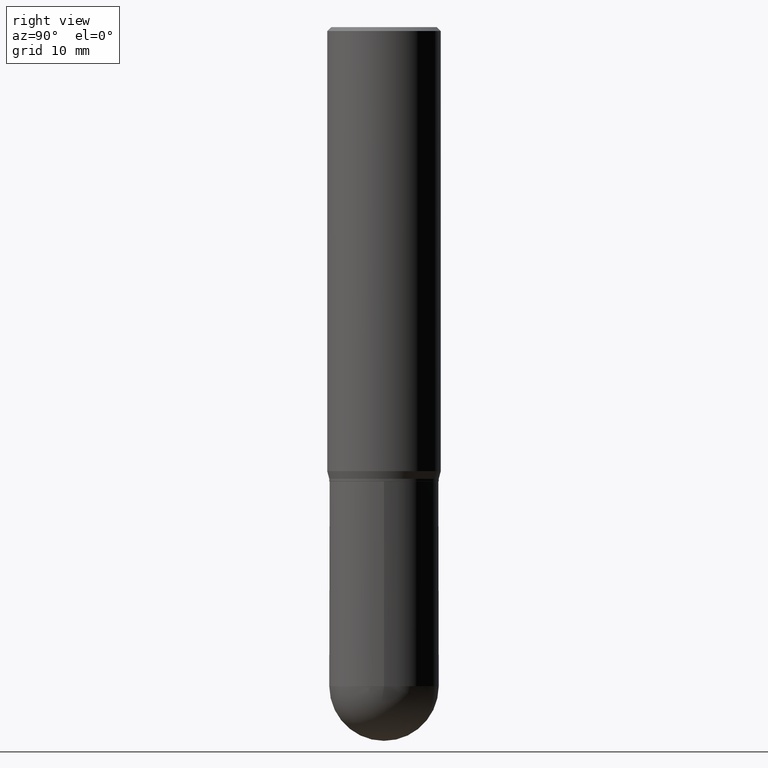
[diagram: clean part render]
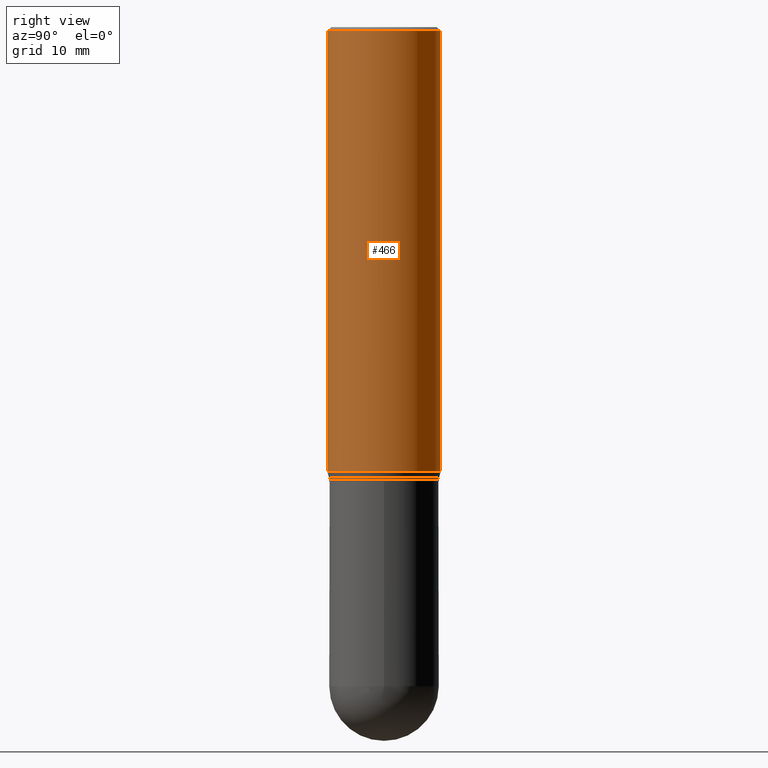
[diagram: same view with one face highlighted and labeled with its STEP entity id]
A machine part, right view. The second image highlights one B-rep face of the part: STEP entity #466.
In plain terms, the highlighted cylindrical surface (partial cylindrical patch) has radius 5.5562 mm, axis along (-0, 0, 1).
Its self-contained STEP definition (entity closure, byte-faithful):
#6 = CARTESIAN_POINT ( 'NONE',  ( -1.527523085743870054E-15, -0.2187500000000000555, -0.01499999999999939403 ) ) ;
#48 = CARTESIAN_POINT ( 'NONE',  ( 1.554312234475260769E-15, 0.2187499999999940603, -1.710890003700963558 ) ) ;
#67 = CARTESIAN_POINT ( 'NONE',  ( 4.183510219591112166E-29, -5.974138999193196321E-15, -1.710890003700962669 ) ) ;
#87 = EDGE_CURVE ( 'NONE', #186, #266, #494, .T. ) ;
#101 = CARTESIAN_POINT ( 'NONE',  ( 1.554312234475260966E-15, 0.2187499999999999167, -0.01500000000000092232 ) ) ;
#119 = ORIENTED_EDGE ( 'NONE', *, *, #312, .T. ) ;
#127 = CARTESIAN_POINT ( 'NONE',  ( -1.527523085743870449E-15, -0.2187500000000000000, 7.638380627898786315E-16 ) ) ;
#132 = LINE ( 'NONE', #127, #395 ) ;
#139 = DIRECTION ( 'NONE',  ( -6.982962677686265133E-15, -1.000000000000000000, 3.492862791899308071E-15 ) ) ;
#155 = AXIS2_PLACEMENT_3D ( 'NONE', #450, #502, #139 ) ;
#158 = CYLINDRICAL_SURFACE ( 'NONE', #223, 0.2187500000000000000 ) ;
#174 = CARTESIAN_POINT ( 'NONE',  ( 1.554312234475218762E-15, 0.2187500000000000000, -7.638380627898786315E-16 ) ) ;
#176 = CARTESIAN_POINT ( 'NONE',  ( -1.527523085743828442E-15, -0.2187500000000059397, -1.710890003700962003 ) ) ;
#186 = VERTEX_POINT ( 'NONE', #48 ) ;
#210 = EDGE_CURVE ( 'NONE', #381, #451, #132, .T. ) ;
#223 = AXIS2_PLACEMENT_3D ( 'NONE', #355, #316, #308 ) ;
#225 = EDGE_CURVE ( 'NONE', #451, #266, #305, .T. ) ;
#226 = ORIENTED_EDGE ( 'NONE', *, *, #225, .F. ) ;
#231 = AXIS2_PLACEMENT_3D ( 'NONE', #67, #418, #465 ) ;
#236 = FACE_OUTER_BOUND ( 'NONE', #293, .T. ) ;
#266 = VERTEX_POINT ( 'NONE', #101 ) ;
#293 = EDGE_LOOP ( 'NONE', ( #119, #409, #226, #382 ) ) ;
#305 = CIRCLE ( 'NONE', #155, 0.2187500000000000000 ) ;
#308 = DIRECTION ( 'NONE',  ( -6.982962677686265133E-15, -1.000000000000000000, 3.491831144182302259E-15 ) ) ;
#312 = EDGE_CURVE ( 'NONE', #381, #186, #492, .T. ) ;
#316 = DIRECTION ( 'NONE',  ( -2.445224538422357859E-29, 3.491831144182302259E-15, 1.000000000000000000 ) ) ;
#355 = CARTESIAN_POINT ( 'NONE',  ( 0.000000000000000000, 0.000000000000000000, 0.000000000000000000 ) ) ;
#361 = VECTOR ( 'NONE', #368, 39.37007874015748143 ) ;
#368 = DIRECTION ( 'NONE',  ( -2.445224538422357859E-29, 3.491831144182302653E-15, 1.000000000000000000 ) ) ;
#381 = VERTEX_POINT ( 'NONE', #176 ) ;
#382 = ORIENTED_EDGE ( 'NONE', *, *, #210, .F. ) ;
#395 = VECTOR ( 'NONE', #443, 39.37007874015748143 ) ;
#409 = ORIENTED_EDGE ( 'NONE', *, *, #87, .T. ) ;
#418 = DIRECTION ( 'NONE',  ( -2.445224538422357859E-29, 3.491831144182302259E-15, 1.000000000000000000 ) ) ;
#443 = DIRECTION ( 'NONE',  ( -2.445224538422357859E-29, 3.491831144182302653E-15, 1.000000000000000000 ) ) ;
#450 = CARTESIAN_POINT ( 'NONE',  ( 3.667836807633575149E-31, -5.237746716273508633E-17, -0.01500000000000015730 ) ) ;
#451 = VERTEX_POINT ( 'NONE', #6 ) ;
#465 = DIRECTION ( 'NONE',  ( -6.982962677686265133E-15, -1.000000000000000000, 3.746534391310989557E-15 ) ) ;
#466 = ADVANCED_FACE ( 'NONE', ( #236 ), #158, .T. ) ;
#492 = CIRCLE ( 'NONE', #231, 0.2187500000000000000 ) ;
#494 = LINE ( 'NONE', #174, #361 ) ;
#502 = DIRECTION ( 'NONE',  ( -2.445224538422357859E-29, 3.491831144182302259E-15, 1.000000000000000000 ) ) ;